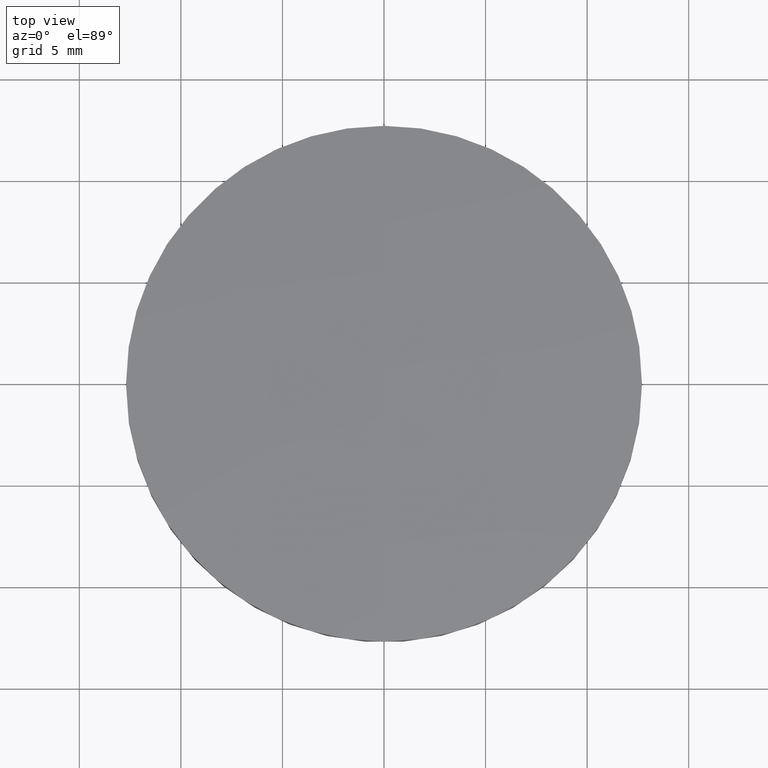
[diagram: clean part render]
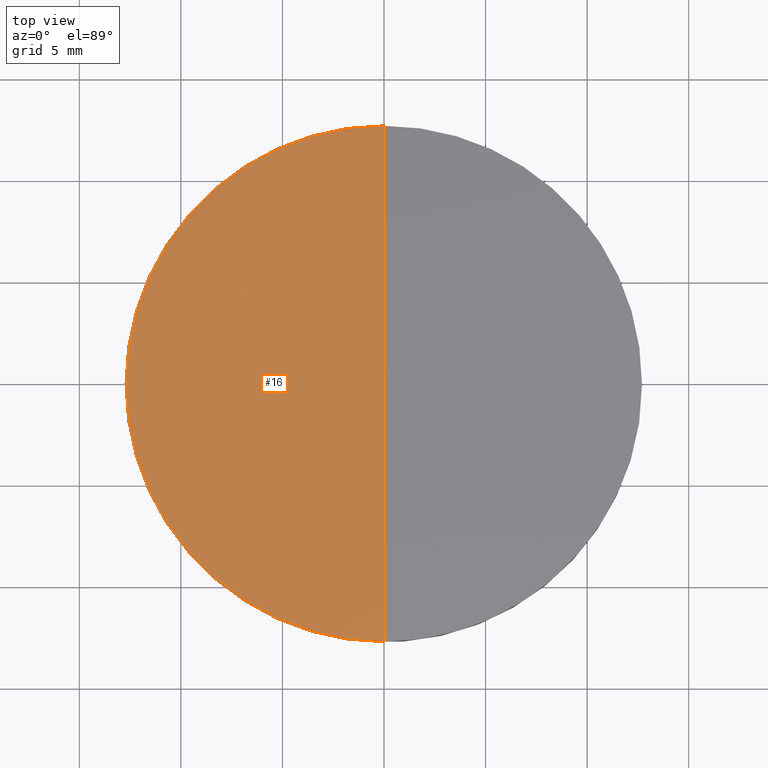
[diagram: same view with one face highlighted and labeled with its STEP entity id]
A machine part, top view. The second image highlights one B-rep face of the part: STEP entity #16.
In plain terms, the highlighted spherical surface has radius 154.52 mm.
Its self-contained STEP definition (entity closure, byte-faithful):
#16 = ADVANCED_FACE ( 'NONE', ( #33 ), #63, .T. ) ;
#33 = FACE_OUTER_BOUND ( 'NONE', #35, .T. ) ;
#35 = EDGE_LOOP ( 'NONE', ( #72, #48, #82, #57 ) ) ;
#37 = DIRECTION ( 'NONE',  ( 0.0000000000000000000, 1.000000000000000000, 0.0000000000000000000 ) ) ;
#38 = DIRECTION ( 'NONE',  ( -1.000000000000000000, 0.0000000000000000000, 0.0000000000000000000 ) ) ;
#39 = CARTESIAN_POINT ( 'NONE',  ( 0.0000000000000000000, 0.0000000000000000000, -153.2600000000000200 ) ) ;
#40 = AXIS2_PLACEMENT_3D ( 'NONE', #39, #38, #37 ) ;
#48 = ORIENTED_EDGE ( 'NONE', *, *, #88, .T. ) ;
#56 = VERTEX_POINT ( 'NONE', #206 ) ;
#57 = ORIENTED_EDGE ( 'NONE', *, *, #80, .F. ) ;
#63 = SPHERICAL_SURFACE ( 'NONE', #40, 154.5200000000000100 ) ;
#70 = VERTEX_POINT ( 'NONE', #202 ) ;
#72 = ORIENTED_EDGE ( 'NONE', *, *, #81, .T. ) ;
#73 = VERTEX_POINT ( 'NONE', #164 ) ;
#80 = EDGE_CURVE ( 'NONE', #70, #89, #170, .T. ) ;
#81 = EDGE_CURVE ( 'NONE', #70, #56, #177, .T. ) ;
#82 = ORIENTED_EDGE ( 'NONE', *, *, #83, .T. ) ;
#83 = EDGE_CURVE ( 'NONE', #73, #89, #154, .T. ) ;
#88 = EDGE_CURVE ( 'NONE', #56, #73, #235, .T. ) ;
#89 = VERTEX_POINT ( 'NONE', #253 ) ;
#154 = CIRCLE ( 'NONE', #210, 154.5200000000000100 ) ;
#156 = DIRECTION ( 'NONE',  ( 1.000000000000000000, 0.0000000000000000000, 0.0000000000000000000 ) ) ;
#157 = DIRECTION ( 'NONE',  ( -0.0000000000000000000, -0.0000000000000000000, 1.000000000000000000 ) ) ;
#164 = CARTESIAN_POINT ( 'NONE',  ( -1.555250069354422800E-015, -12.70000000000002900, 0.7372090656191268000 ) ) ;
#170 = CIRCLE ( 'NONE', #189, 154.5200000000000400 ) ;
#176 = AXIS2_PLACEMENT_3D ( 'NONE', #190, #157, #156 ) ;
#177 = CIRCLE ( 'NONE', #176, 12.69999999999999900 ) ;
#178 = DIRECTION ( 'NONE',  ( 0.0000000000000000000, 0.0000000000000000000, -1.000000000000000000 ) ) ;
#187 = DIRECTION ( 'NONE',  ( 1.000000000000000000, 0.0000000000000000000, 0.0000000000000000000 ) ) ;
#188 = CARTESIAN_POINT ( 'NONE',  ( 0.0000000000000000000, 0.0000000000000000000, -153.2600000000000200 ) ) ;
#189 = AXIS2_PLACEMENT_3D ( 'NONE', #188, #187, #178 ) ;
#190 = CARTESIAN_POINT ( 'NONE',  ( 0.0000000000000000000, 0.0000000000000000000, 0.7372090656191160300 ) ) ;
#202 = CARTESIAN_POINT ( 'NONE',  ( 0.0000000000000000000, 12.70000000000002900, 0.7372090656191268000 ) ) ;
#206 = CARTESIAN_POINT ( 'NONE',  ( -12.69999999999999900, 1.555250069354419100E-015, 0.7372090656191160300 ) ) ;
#210 = AXIS2_PLACEMENT_3D ( 'NONE', #233, #227, #259 ) ;
#221 = DIRECTION ( 'NONE',  ( 1.000000000000000000, 0.0000000000000000000, 0.0000000000000000000 ) ) ;
#227 = DIRECTION ( 'NONE',  ( -1.000000000000000000, 1.224606353822377300E-016, 0.0000000000000000000 ) ) ;
#231 = CARTESIAN_POINT ( 'NONE',  ( 0.0000000000000000000, 0.0000000000000000000, 0.7372090656191160300 ) ) ;
#233 = CARTESIAN_POINT ( 'NONE',  ( 0.0000000000000000000, 0.0000000000000000000, -153.2600000000000200 ) ) ;
#235 = CIRCLE ( 'NONE', #252, 12.69999999999999900 ) ;
#242 = DIRECTION ( 'NONE',  ( -0.0000000000000000000, -0.0000000000000000000, 1.000000000000000000 ) ) ;
#252 = AXIS2_PLACEMENT_3D ( 'NONE', #231, #242, #221 ) ;
#253 = CARTESIAN_POINT ( 'NONE',  ( 0.0000000000000000000, 9.461308689631688100E-015, 1.260000000000011100 ) ) ;
#259 = DIRECTION ( 'NONE',  ( -1.224606353822377300E-016, -1.000000000000000000, 0.0000000000000000000 ) ) ;